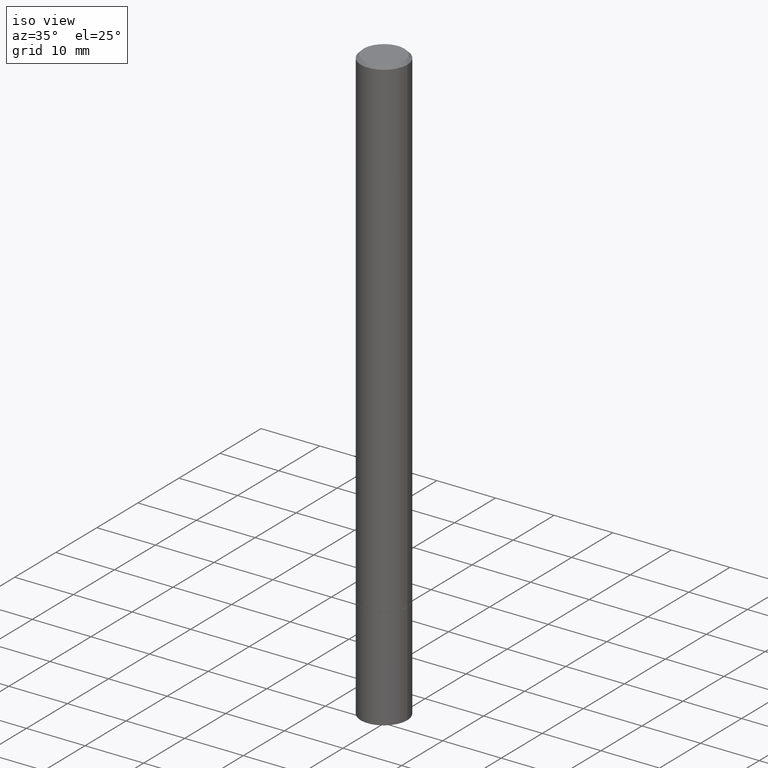
[diagram: clean part render]
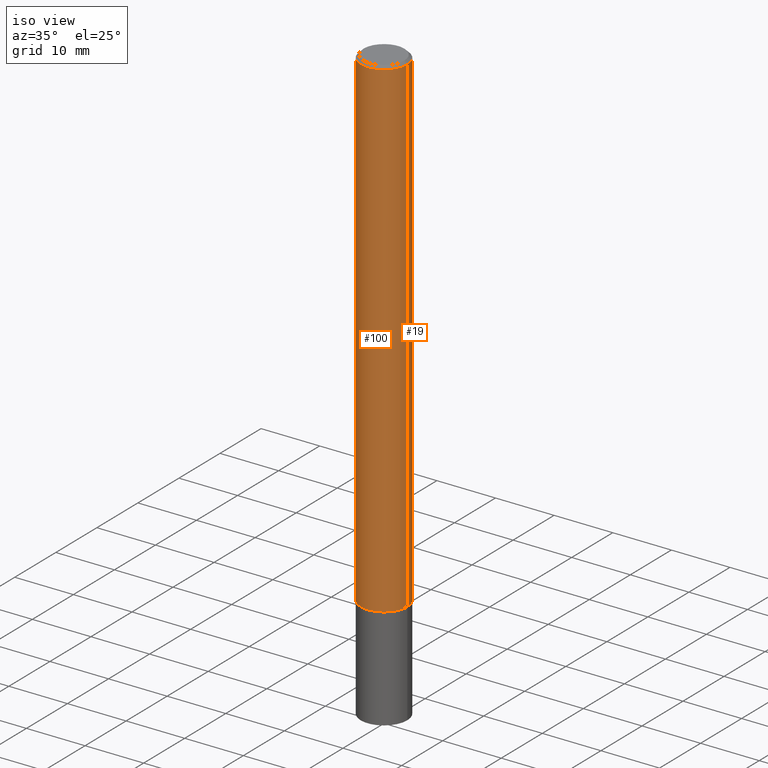
[diagram: same view with one multi-face feature highlighted, each face labeled with its STEP entity id]
A machine part, iso view. The highlighted faces form ONE feature: a constant-radius fillet chain: 2 tangent blend faces with common blend radius 3.9687 mm. The faces share edges in the B-rep.
Their STEP definitions:
[1] entity #100 (Cylinder):
#1 = CARTESIAN_POINT ( 'NONE',  ( 0.1562499999999995559, -1.141782438928661752E-15, -0.02000000000000004205 ) ) ;
#10 = LINE ( 'NONE', #98, #35 ) ;
#12 = CARTESIAN_POINT ( 'NONE',  ( -0.1562500000000000000, -4.704839145218096672E-15, -3.311000000000000387 ) ) ;
#26 = ORIENTED_EDGE ( 'NONE', *, *, #296, .T. ) ;
#30 = DIRECTION ( 'NONE',  ( -2.445468806185136877E-29, 3.491481338843145188E-15, 1.000000000000000000 ) ) ;
#35 = VECTOR ( 'NONE', #131, 39.37007874015748143 ) ;
#41 = AXIS2_PLACEMENT_3D ( 'NONE', #356, #215, #280 ) ;
#70 = DIRECTION ( 'NONE',  ( -2.445468806185136597E-29, 3.491481338843145583E-15, 1.000000000000000000 ) ) ;
#90 = CARTESIAN_POINT ( 'NONE',  ( 0.1562500000000000000, -1.265138263129813571E-14, -3.311000000000000387 ) ) ;
#96 = LINE ( 'NONE', #125, #123 ) ;
#98 = CARTESIAN_POINT ( 'NONE',  ( -0.1562499999999998057, 1.110223024625155160E-15, -7.685836078523279949E-30 ) ) ;
#100 = ADVANCED_FACE ( 'NONE', ( #303 ), #184, .T. ) ;
#105 = VERTEX_POINT ( 'NONE', #1 ) ;
#114 = EDGE_LOOP ( 'NONE', ( #301, #26, #155, #327 ) ) ;
#119 = CARTESIAN_POINT ( 'NONE',  ( 0.000000000000000000, 0.000000000000000000, 0.000000000000000000 ) ) ;
#123 = VECTOR ( 'NONE', #30, 39.37007874015748143 ) ;
#125 = CARTESIAN_POINT ( 'NONE',  ( 0.1562499999999998057, -1.091087918388477793E-15, 7.619026212181139167E-30 ) ) ;
#129 = CARTESIAN_POINT ( 'NONE',  ( -0.1562499999999995559, 1.021258291611613114E-15, -0.02000000000000004205 ) ) ;
#131 = DIRECTION ( 'NONE',  ( -2.445468806185136877E-29, 3.491481338843145188E-15, 1.000000000000000000 ) ) ;
#145 = VERTEX_POINT ( 'NONE', #90 ) ;
#154 = CIRCLE ( 'NONE', #259, 0.1562500000000000000 ) ;
#155 = ORIENTED_EDGE ( 'NONE', *, *, #163, .T. ) ;
#163 = EDGE_CURVE ( 'NONE', #145, #105, #96, .T. ) ;
#166 = DIRECTION ( 'NONE',  ( 1.000000000000000000, -6.982962677686262766E-15, 0.000000000000000000 ) ) ;
#184 = CYLINDRICAL_SURFACE ( 'NONE', #335, 0.1562499999999998057 ) ;
#215 = DIRECTION ( 'NONE',  ( -2.445468806185136597E-29, 3.491481338843145583E-15, 1.000000000000000000 ) ) ;
#225 = CARTESIAN_POINT ( 'NONE',  ( 8.096947217278987693E-29, -1.156029471290965575E-14, -3.311000000000000387 ) ) ;
#259 = AXIS2_PLACEMENT_3D ( 'NONE', #225, #70, #166 ) ;
#275 = DIRECTION ( 'NONE',  ( -2.445468806185136597E-29, 3.491481338843145583E-15, 1.000000000000000000 ) ) ;
#279 = DIRECTION ( 'NONE',  ( 1.000000000000000000, -6.982962677686266711E-15, 4.876176775795935232E-29 ) ) ;
#280 = DIRECTION ( 'NONE',  ( 1.000000000000000000, -6.982962677686267499E-15, 0.000000000000000000 ) ) ;
#287 = EDGE_CURVE ( 'NONE', #354, #105, #321, .T. ) ;
#293 = VERTEX_POINT ( 'NONE', #12 ) ;
#296 = EDGE_CURVE ( 'NONE', #293, #145, #154, .T. ) ;
#301 = ORIENTED_EDGE ( 'NONE', *, *, #343, .F. ) ;
#303 = FACE_OUTER_BOUND ( 'NONE', #114, .T. ) ;
#321 = CIRCLE ( 'NONE', #41, 0.1562499999999995559 ) ;
#327 = ORIENTED_EDGE ( 'NONE', *, *, #287, .F. ) ;
#335 = AXIS2_PLACEMENT_3D ( 'NONE', #119, #275, #279 ) ;
#343 = EDGE_CURVE ( 'NONE', #293, #354, #10, .T. ) ;
#354 = VERTEX_POINT ( 'NONE', #129 ) ;
#356 = CARTESIAN_POINT ( 'NONE',  ( 4.890937612370283668E-31, -6.982962677686305168E-17, -0.02000000000000004205 ) ) ;
[2] entity #19 (Cylinder):
#1 = CARTESIAN_POINT ( 'NONE',  ( 0.1562499999999995559, -1.141782438928661752E-15, -0.02000000000000004205 ) ) ;
#10 = LINE ( 'NONE', #98, #35 ) ;
#12 = CARTESIAN_POINT ( 'NONE',  ( -0.1562500000000000000, -4.704839145218096672E-15, -3.311000000000000387 ) ) ;
#19 = ADVANCED_FACE ( 'NONE', ( #82 ), #234, .T. ) ;
#20 = ORIENTED_EDGE ( 'NONE', *, *, #163, .F. ) ;
#30 = DIRECTION ( 'NONE',  ( -2.445468806185136877E-29, 3.491481338843145188E-15, 1.000000000000000000 ) ) ;
#35 = VECTOR ( 'NONE', #131, 39.37007874015748143 ) ;
#49 = EDGE_CURVE ( 'NONE', #105, #354, #68, .T. ) ;
#55 = AXIS2_PLACEMENT_3D ( 'NONE', #302, #328, #181 ) ;
#68 = CIRCLE ( 'NONE', #199, 0.1562499999999995559 ) ;
#82 = FACE_OUTER_BOUND ( 'NONE', #330, .T. ) ;
#83 = CARTESIAN_POINT ( 'NONE',  ( 0.000000000000000000, 0.000000000000000000, 0.000000000000000000 ) ) ;
#85 = DIRECTION ( 'NONE',  ( 1.000000000000000000, -6.982962677686266711E-15, 4.876176775795935232E-29 ) ) ;
#90 = CARTESIAN_POINT ( 'NONE',  ( 0.1562500000000000000, -1.265138263129813571E-14, -3.311000000000000387 ) ) ;
#96 = LINE ( 'NONE', #125, #123 ) ;
#98 = CARTESIAN_POINT ( 'NONE',  ( -0.1562499999999998057, 1.110223024625155160E-15, -7.685836078523279949E-30 ) ) ;
#105 = VERTEX_POINT ( 'NONE', #1 ) ;
#123 = VECTOR ( 'NONE', #30, 39.37007874015748143 ) ;
#125 = CARTESIAN_POINT ( 'NONE',  ( 0.1562499999999998057, -1.091087918388477793E-15, 7.619026212181139167E-30 ) ) ;
#129 = CARTESIAN_POINT ( 'NONE',  ( -0.1562499999999995559, 1.021258291611613114E-15, -0.02000000000000004205 ) ) ;
#131 = DIRECTION ( 'NONE',  ( -2.445468806185136877E-29, 3.491481338843145188E-15, 1.000000000000000000 ) ) ;
#145 = VERTEX_POINT ( 'NONE', #90 ) ;
#163 = EDGE_CURVE ( 'NONE', #145, #105, #96, .T. ) ;
#174 = AXIS2_PLACEMENT_3D ( 'NONE', #83, #291, #85 ) ;
#181 = DIRECTION ( 'NONE',  ( 1.000000000000000000, -6.982962677686262766E-15, 0.000000000000000000 ) ) ;
#182 = EDGE_CURVE ( 'NONE', #145, #293, #203, .T. ) ;
#186 = ORIENTED_EDGE ( 'NONE', *, *, #182, .T. ) ;
#199 = AXIS2_PLACEMENT_3D ( 'NONE', #202, #297, #317 ) ;
#202 = CARTESIAN_POINT ( 'NONE',  ( 4.890937612370283668E-31, -6.982962677686305168E-17, -0.02000000000000004205 ) ) ;
#203 = CIRCLE ( 'NONE', #55, 0.1562500000000000000 ) ;
#234 = CYLINDRICAL_SURFACE ( 'NONE', #174, 0.1562499999999998057 ) ;
#272 = ORIENTED_EDGE ( 'NONE', *, *, #49, .F. ) ;
#291 = DIRECTION ( 'NONE',  ( -2.445468806185136597E-29, 3.491481338843145583E-15, 1.000000000000000000 ) ) ;
#293 = VERTEX_POINT ( 'NONE', #12 ) ;
#297 = DIRECTION ( 'NONE',  ( -2.445468806185136597E-29, 3.491481338843145583E-15, 1.000000000000000000 ) ) ;
#302 = CARTESIAN_POINT ( 'NONE',  ( 8.096947217278987693E-29, -1.156029471290965575E-14, -3.311000000000000387 ) ) ;
#317 = DIRECTION ( 'NONE',  ( 1.000000000000000000, -6.982962677686267499E-15, 0.000000000000000000 ) ) ;
#325 = ORIENTED_EDGE ( 'NONE', *, *, #343, .T. ) ;
#328 = DIRECTION ( 'NONE',  ( -2.445468806185136597E-29, 3.491481338843145583E-15, 1.000000000000000000 ) ) ;
#330 = EDGE_LOOP ( 'NONE', ( #186, #325, #272, #20 ) ) ;
#343 = EDGE_CURVE ( 'NONE', #293, #354, #10, .T. ) ;
#354 = VERTEX_POINT ( 'NONE', #129 ) ;